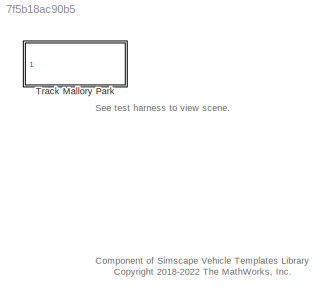
MODEL slx_7f5b18ac90b5
KIND library
CONFIG AbsTol = auto
CONFIG EnableMultiTasking = off
CONFIG FixedStep = auto
CONFIG MaxStep = auto
CONFIG MinStep = auto
CONFIG RelTol = 1e-3
CONFIG SampleTimeConstraint = Unconstrained
CONFIG SolverName = VariableStepAuto
CONFIG StartTime = 0.0
CONFIG StopTime = 10.0
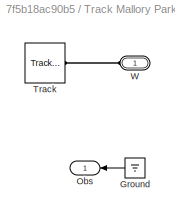
BLOCK [SubSystem] Track Mallory Park
  Ports = [0, 1, 0, 0, 0, 1]
  RequestExecContextInheritance = off
BLOCK [Ground] Track Mallory Park/Ground
  NameLocation = top
BLOCK [Outport] Track Mallory Park/Obs
  VectorParamsAs1DForOutWhenUnconnected = off
BLOCK [Reference] Track Mallory Park/Track  REF=sm_car_lib/Environment/Track Extrusion  (lib defined in slx_05426f0848b6, slx_5dc2867fb1c9)
  Ports = [0, 0, 0, 0, 0, 0, 1]
  SourceBlock = sm_car_lib/Environment/Track Extrusion
BLOCK [PMIOPort] Track Mallory Park/W
  NameLocation = top
  Side = Left
ANNOTATION (root): Component of Simscape Vehicle Templates Library <copyright redacted>
ANNOTATION (root): See test harness to view scene.
LINE Track Mallory Park/Ground:1 -> Track Mallory Park/Obs:1
PLINE Track Mallory Park/Track:RConn1 -- Track Mallory Park/W:RConn1
